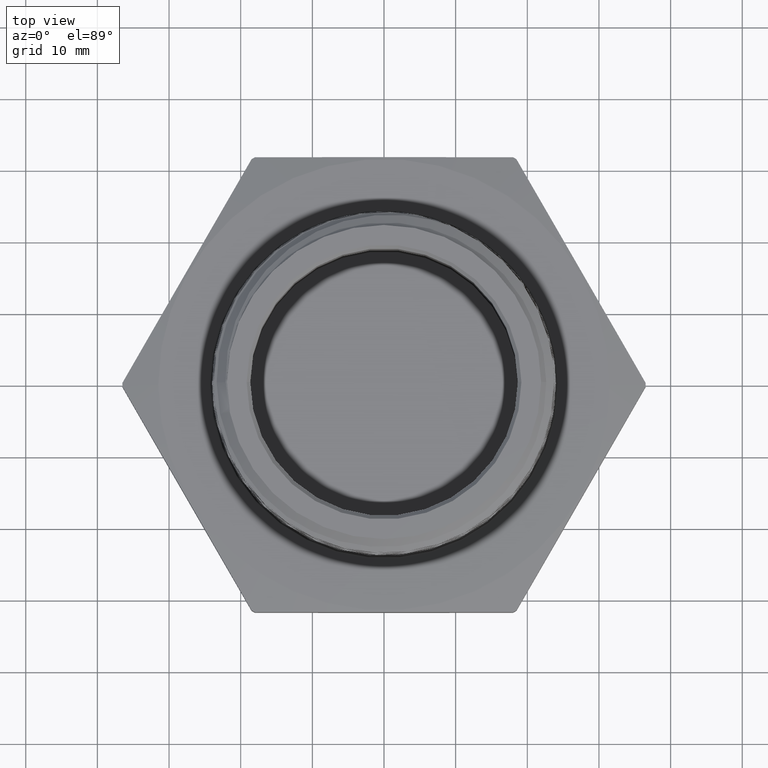
[diagram: clean part render]
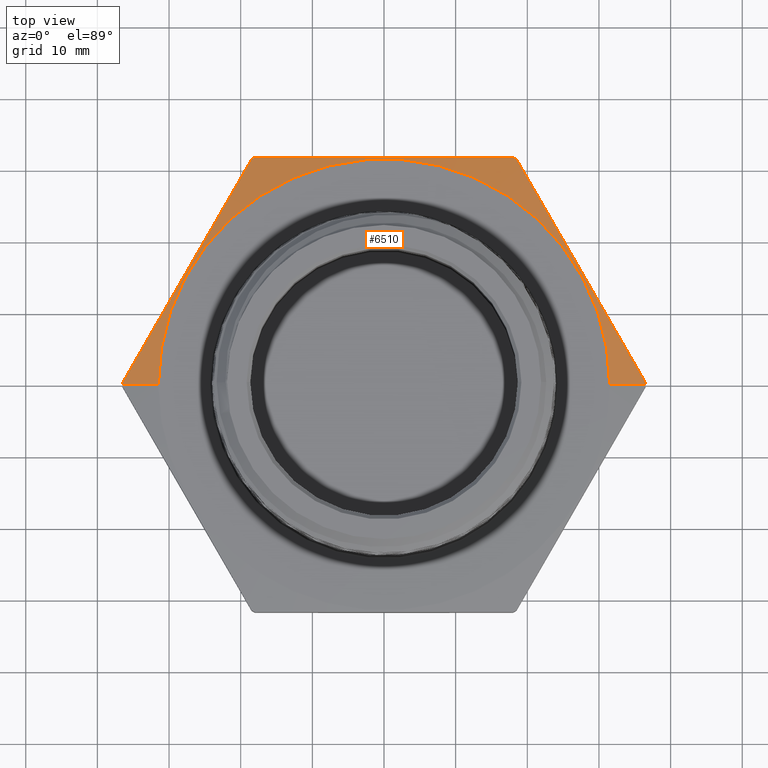
[diagram: same view with one face highlighted and labeled with its STEP entity id]
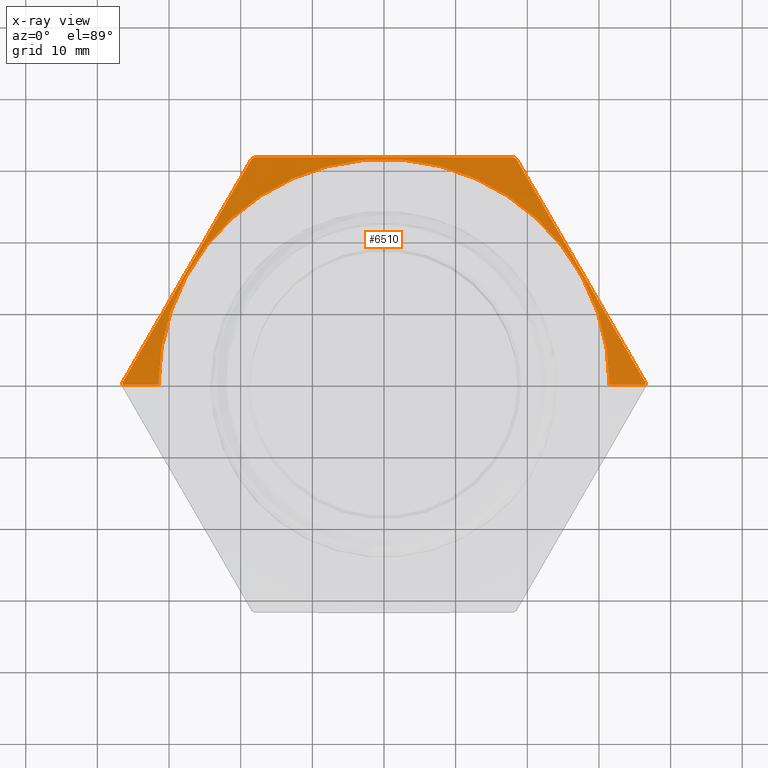
[diagram: x-ray of the same camera — body ghosted, the highlighted face saturated]
A machine part, top view. The second image highlights one B-rep face of the part: STEP entity #6510.
The next image is the same camera in x-ray: the body ghosted, the highlighted face saturated — about 0% of this face is hidden behind the body in this view.
In plain terms, the highlighted conical surface has half-angle 78 deg.
Its self-contained STEP definition (entity closure, byte-faithful):
#6 = CARTESIAN_POINT ( 'NONE',  ( -1.240000000000000000, 0.0000000000000000000, 0.2899999999999999800 ) ) ;
#8 = DIRECTION ( 'NONE',  ( -0.9781476007338069100, 0.0000000000000000000, -0.2079116908177528500 ) ) ;
#32 = CARTESIAN_POINT ( 'NONE',  ( -0.7096117426153864000, 1.250000000000000000, 0.2480465055953273400 ) ) ;
#36 = CARTESIAN_POINT ( 'NONE',  ( -0.5914369464278115300, 1.249999999999999800, 0.2604473106845319200 ) ) ;
#40 = CARTESIAN_POINT ( 'NONE',  ( -0.4728121291848240700, 1.250000000000000000, 0.2705372615892945900 ) ) ;
#41 = CARTESIAN_POINT ( 'NONE',  ( -0.2359184263323641000, 1.250000000000000000, 0.2842708287924888800 ) ) ;
#42 = CARTESIAN_POINT ( 'NONE',  ( -0.1175444299483716900, 1.250000000000000000, 0.2878894341945629200 ) ) ;
#43 = CARTESIAN_POINT ( 'NONE',  ( 0.1190405607234314000, 1.250000000000000200, 0.2878593394144130500 ) ) ;
#44 = CARTESIAN_POINT ( 'NONE',  ( 0.2372515809196331600, 1.250000000000000000, 0.2842117943351167900 ) ) ;
#45 = CARTESIAN_POINT ( 'NONE',  ( 0.4735291881626639300, 1.250000000000000200, 0.2704772788097142800 ) ) ;
#46 = CARTESIAN_POINT ( 'NONE',  ( 0.5915966777893302300, 1.250000000000000000, 0.2604305490945419400 ) ) ;
#47 = CARTESIAN_POINT ( 'NONE',  ( 0.7096117426153864000, 1.250000000000000000, 0.2480465055953271200 ) ) ;
#238 = CARTESIAN_POINT ( 'NONE',  ( 3.112950277887315500E-017, 0.0000000000000000000, 0.2480465055953272300 ) ) ;
#239 = DIRECTION ( 'NONE',  ( -1.254986547952384500E-016, -0.0000000000000000000, -1.000000000000000000 ) ) ;
#240 = DIRECTION ( 'NONE',  ( -1.000000000000000000, 0.0000000000000000000, 1.187862733552032300E-016 ) ) ;
#241 = DIRECTION ( 'NONE',  ( 0.9781476007338069100, 1.197885328332319900E-016, -0.2079116908177530700 ) ) ;
#255 = CARTESIAN_POINT ( 'NONE',  ( 3.639460989061912300E-017, 0.0000000000000000000, 0.2899999999999998100 ) ) ;
#256 = DIRECTION ( 'NONE',  ( -1.254986547952384500E-016, -0.0000000000000000000, -1.000000000000000000 ) ) ;
#257 = DIRECTION ( 'NONE',  ( -1.000000000000000000, 0.0000000000000000000, 1.376939512935616700E-016 ) ) ;
#258 = CARTESIAN_POINT ( 'NONE',  ( 0.7868601953074697600, 1.137118163273891600, 0.2604571565872932900 ) ) ;
#259 = CARTESIAN_POINT ( 'NONE',  ( 0.7277258834228544900, 1.239541795928669900, 0.2480465055953271200 ) ) ;
#260 = CARTESIAN_POINT ( 'NONE',  ( 1.240000000000000000, 1.518562030942717800E-016, 0.2899999999999996500 ) ) ;
#261 = CARTESIAN_POINT ( 'NONE',  ( 3.112950277887315500E-017, 0.0000000000000000000, 0.2480465055953272300 ) ) ;
#262 = DIRECTION ( 'NONE',  ( -1.254986547952384500E-016, -0.0000000000000000000, -1.000000000000000000 ) ) ;
#263 = DIRECTION ( 'NONE',  ( -1.000000000000000000, 0.0000000000000000000, 1.187862733552032300E-016 ) ) ;
#266 = CARTESIAN_POINT ( 'NONE',  ( 0.8459945071920852400, 1.034694530619113300, 0.2705141470225281300 ) ) ;
#267 = CARTESIAN_POINT ( 'NONE',  ( 0.9642631309613165500, 0.8298472653095566600, 0.2842428284284243000 ) ) ;
#268 = CARTESIAN_POINT ( 'NONE',  ( 1.082531754730548000, 0.6250000000000003300, 0.2915060403381750100 ) ) ;
#269 = CARTESIAN_POINT ( 'NONE',  ( 1.200800378499779600, 0.4201527346904442900, 0.2842428284284243000 ) ) ;
#270 = CARTESIAN_POINT ( 'NONE',  ( 1.319069002269010100, 0.2153054693808877700, 0.2705141470225280700 ) ) ;
#271 = CARTESIAN_POINT ( 'NONE',  ( 1.378203314153626300, 0.1128818367261094100, 0.2604571565872932900 ) ) ;
#272 = CARTESIAN_POINT ( 'NONE',  ( 1.437337626038241800, 0.01045820407133149800, 0.2480465055953270700 ) ) ;
#346 = CARTESIAN_POINT ( 'NONE',  ( 3.112950277887315500E-017, 0.0000000000000000000, 0.2480465055953272300 ) ) ;
#347 = DIRECTION ( 'NONE',  ( -1.254986547952384500E-016, -0.0000000000000000000, -1.000000000000000000 ) ) ;
#348 = DIRECTION ( 'NONE',  ( -1.000000000000000000, 0.0000000000000000000, 1.187862733552032300E-016 ) ) ;
#612 = FACE_OUTER_BOUND ( 'NONE', #3801, .T. ) ;
#619 = CONICAL_SURFACE ( 'NONE', #7720, 1.240000000000000000, 1.361356816555583600 ) ;
#694 = CIRCLE ( 'NONE', #7769, 1.437375672974064800 ) ;
#703 = LINE ( 'NONE', #6, #711 ) ;
#711 = VECTOR ( 'NONE', #8, 39.37007874015748100 ) ;
#731 = CIRCLE ( 'NONE', #7489, 1.437375672974064800 ) ;
#733 = CIRCLE ( 'NONE', #7491, 1.240000000000000000 ) ;
#735 = LINE ( 'NONE', #260, #740 ) ;
#736 = CIRCLE ( 'NONE', #7492, 1.437375672974064800 ) ;
#740 = VECTOR ( 'NONE', #241, 39.37007874015748100 ) ;
#744 = CIRCLE ( 'NONE', #7494, 1.437375672974064800 ) ;
#3097 = B_SPLINE_CURVE_WITH_KNOTS ( 'NONE', 3,
 ( #6450, #6445, #6439, #6438, #6437, #6436, #6435, #6434, #6433 ),
 .UNSPECIFIED., .F., .F.,
 ( 4, 2, 1, 2, 4 ),
 ( 1.905845154219557400E-006, 0.009013974976369621600, 0.01802604410758503300, 0.02703811323880044000, 0.03605018237001585100 ),
 .UNSPECIFIED. ) ;
#3102 = B_SPLINE_CURVE_WITH_KNOTS ( 'NONE', 3,
 ( #32, #36, #40, #41, #42, #43, #44, #45, #46, #47 ),
 .UNSPECIFIED., .F., .F.,
 ( 4, 2, 2, 2, 4 ),
 ( 0.03073386060152988300, 0.03978191689248866700, 0.04882997318344744300, 0.05787802947440622000, 0.06692608576536500400 ),
 .UNSPECIFIED. ) ;
#3109 = B_SPLINE_CURVE_WITH_KNOTS ( 'NONE', 3,
 ( #259, #258, #266, #267, #268, #269, #270, #271, #272 ),
 .UNSPECIFIED., .F., .F.,
 ( 4, 2, 1, 2, 4 ),
 ( 1.905845154143763200E-006, 0.009013974976369555600, 0.01802604410758496700, 0.02703811323880038100, 0.03605018237001578200 ),
 .UNSPECIFIED. ) ;
#3801 = EDGE_LOOP ( 'NONE', ( #3851, #3850, #3849, #3848, #3847, #3846, #3845, #3844, #3843, #3842 ) ) ;
#3842 = ORIENTED_EDGE ( 'NONE', *, *, #7573, .F. ) ;
#3843 = ORIENTED_EDGE ( 'NONE', *, *, #7610, .F. ) ;
#3844 = ORIENTED_EDGE ( 'NONE', *, *, #7562, .F. ) ;
#3845 = ORIENTED_EDGE ( 'NONE', *, *, #7561, .F. ) ;
#3846 = ORIENTED_EDGE ( 'NONE', *, *, #7578, .F. ) ;
#3847 = ORIENTED_EDGE ( 'NONE', *, *, #7601, .F. ) ;
#3848 = ORIENTED_EDGE ( 'NONE', *, *, #7603, .F. ) ;
#3849 = ORIENTED_EDGE ( 'NONE', *, *, #7596, .F. ) ;
#3850 = ORIENTED_EDGE ( 'NONE', *, *, #7602, .T. ) ;
#3851 = ORIENTED_EDGE ( 'NONE', *, *, #7599, .T. ) ;
#6030 = VERTEX_POINT ( 'NONE', #6810 ) ;
#6046 = VERTEX_POINT ( 'NONE', #6793 ) ;
#6051 = VERTEX_POINT ( 'NONE', #6788 ) ;
#6053 = VERTEX_POINT ( 'NONE', #6784 ) ;
#6055 = VERTEX_POINT ( 'NONE', #6782 ) ;
#6056 = VERTEX_POINT ( 'NONE', #6781 ) ;
#6057 = VERTEX_POINT ( 'NONE', #6780 ) ;
#6058 = VERTEX_POINT ( 'NONE', #6779 ) ;
#6059 = VERTEX_POINT ( 'NONE', #6778 ) ;
#6060 = VERTEX_POINT ( 'NONE', #6777 ) ;
#6433 = CARTESIAN_POINT ( 'NONE',  ( -0.7277258834228548200, 1.239541795928669600, 0.2480465055953273400 ) ) ;
#6434 = CARTESIAN_POINT ( 'NONE',  ( -0.7868601953074708700, 1.137118163273891800, 0.2604571565872933500 ) ) ;
#6435 = CARTESIAN_POINT ( 'NONE',  ( -0.8459945071920862400, 1.034694530619113800, 0.2705141470225281800 ) ) ;
#6436 = CARTESIAN_POINT ( 'NONE',  ( -0.9642631309613169900, 0.8298472653095566600, 0.2842428284284242400 ) ) ;
#6437 = CARTESIAN_POINT ( 'NONE',  ( -1.082531754730547700, 0.6250000000000005600, 0.2915060403381749500 ) ) ;
#6438 = CARTESIAN_POINT ( 'NONE',  ( -1.200800378499779400, 0.4201527346904437900, 0.2842428284284243000 ) ) ;
#6439 = CARTESIAN_POINT ( 'NONE',  ( -1.319069002269010600, 0.2153054693808876300, 0.2705141470225283000 ) ) ;
#6441 = DIRECTION ( 'NONE',  ( -1.000000000000000000, 0.0000000000000000000, 1.187862733552032300E-016 ) ) ;
#6442 = DIRECTION ( 'NONE',  ( -1.254986547952384500E-016, -0.0000000000000000000, -1.000000000000000000 ) ) ;
#6443 = CARTESIAN_POINT ( 'NONE',  ( 3.112950277887315500E-017, 0.0000000000000000000, 0.2480465055953272300 ) ) ;
#6445 = CARTESIAN_POINT ( 'NONE',  ( -1.378203314153626100, 0.1128818367261094600, 0.2604571565872934600 ) ) ;
#6450 = CARTESIAN_POINT ( 'NONE',  ( -1.437337626038241800, 0.01045820407133122400, 0.2480465055953274000 ) ) ;
#6510 = ADVANCED_FACE ( 'NONE', ( #612 ), #619, .T. ) ;
#6679 = DIRECTION ( 'NONE',  ( -1.254986547952384500E-016, -0.0000000000000000000, -1.000000000000000000 ) ) ;
#6680 = CARTESIAN_POINT ( 'NONE',  ( 3.639460989061912300E-017, 0.0000000000000000000, 0.2899999999999998100 ) ) ;
#6681 = DIRECTION ( 'NONE',  ( -1.000000000000000000, 0.0000000000000000000, 1.376939512935616700E-016 ) ) ;
#6777 = CARTESIAN_POINT ( 'NONE',  ( -1.437375672974064800, 0.0000000000000000000, 0.2480465055953274000 ) ) ;
#6778 = CARTESIAN_POINT ( 'NONE',  ( -1.437337626038241800, 0.01045820407133122400, 0.2480465055953274000 ) ) ;
#6779 = CARTESIAN_POINT ( 'NONE',  ( -0.7277258834228548200, 1.239541795928669600, 0.2480465055953273400 ) ) ;
#6780 = CARTESIAN_POINT ( 'NONE',  ( 1.437375672974064500, 1.760277517079960800E-016, 0.2480465055953270700 ) ) ;
#6781 = CARTESIAN_POINT ( 'NONE',  ( 1.437337626038241800, 0.01045820407133149800, 0.2480465055953270700 ) ) ;
#6782 = CARTESIAN_POINT ( 'NONE',  ( 0.7096117426153864000, 1.250000000000000000, 0.2480465055953271200 ) ) ;
#6784 = CARTESIAN_POINT ( 'NONE',  ( -0.7096117426153864000, 1.250000000000000000, 0.2480465055953273400 ) ) ;
#6788 = CARTESIAN_POINT ( 'NONE',  ( 0.7277258834228544900, 1.239541795928669900, 0.2480465055953271200 ) ) ;
#6793 = CARTESIAN_POINT ( 'NONE',  ( 1.240000000000000000, 1.518562030942717800E-016, 0.2899999999999996500 ) ) ;
#6810 = CARTESIAN_POINT ( 'NONE',  ( -1.240000000000000000, 0.0000000000000000000, 0.2899999999999999800 ) ) ;
#7489 = AXIS2_PLACEMENT_3D ( 'NONE', #238, #239, #240 ) ;
#7491 = AXIS2_PLACEMENT_3D ( 'NONE', #255, #256, #257 ) ;
#7492 = AXIS2_PLACEMENT_3D ( 'NONE', #261, #262, #263 ) ;
#7494 = AXIS2_PLACEMENT_3D ( 'NONE', #346, #347, #348 ) ;
#7561 = EDGE_CURVE ( 'NONE', #6058, #6053, #694, .T. ) ;
#7562 = EDGE_CURVE ( 'NONE', #6059, #6058, #3097, .T. ) ;
#7573 = EDGE_CURVE ( 'NONE', #6030, #6060, #703, .T. ) ;
#7578 = EDGE_CURVE ( 'NONE', #6053, #6055, #3102, .T. ) ;
#7596 = EDGE_CURVE ( 'NONE', #6056, #6057, #731, .T. ) ;
#7599 = EDGE_CURVE ( 'NONE', #6030, #6046, #733, .T. ) ;
#7601 = EDGE_CURVE ( 'NONE', #6055, #6051, #736, .T. ) ;
#7602 = EDGE_CURVE ( 'NONE', #6046, #6057, #735, .T. ) ;
#7603 = EDGE_CURVE ( 'NONE', #6051, #6056, #3109, .T. ) ;
#7610 = EDGE_CURVE ( 'NONE', #6060, #6059, #744, .T. ) ;
#7720 = AXIS2_PLACEMENT_3D ( 'NONE', #6680, #6679, #6681 ) ;
#7769 = AXIS2_PLACEMENT_3D ( 'NONE', #6443, #6442, #6441 ) ;